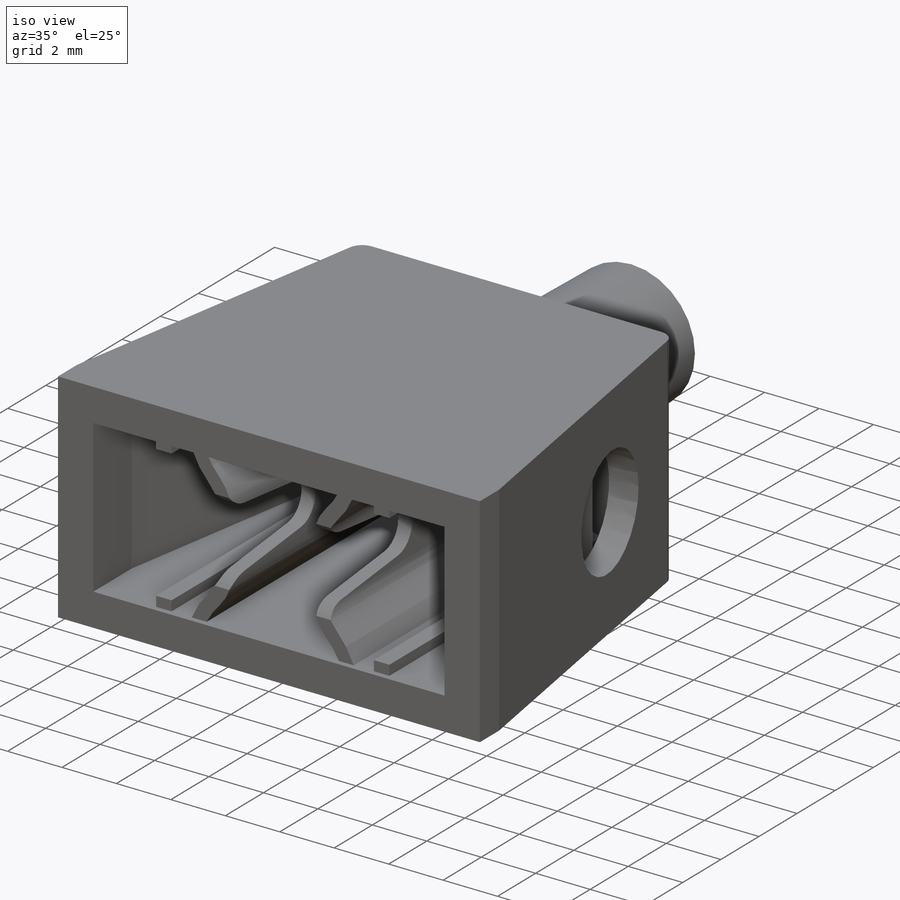
[diagram: iso view]
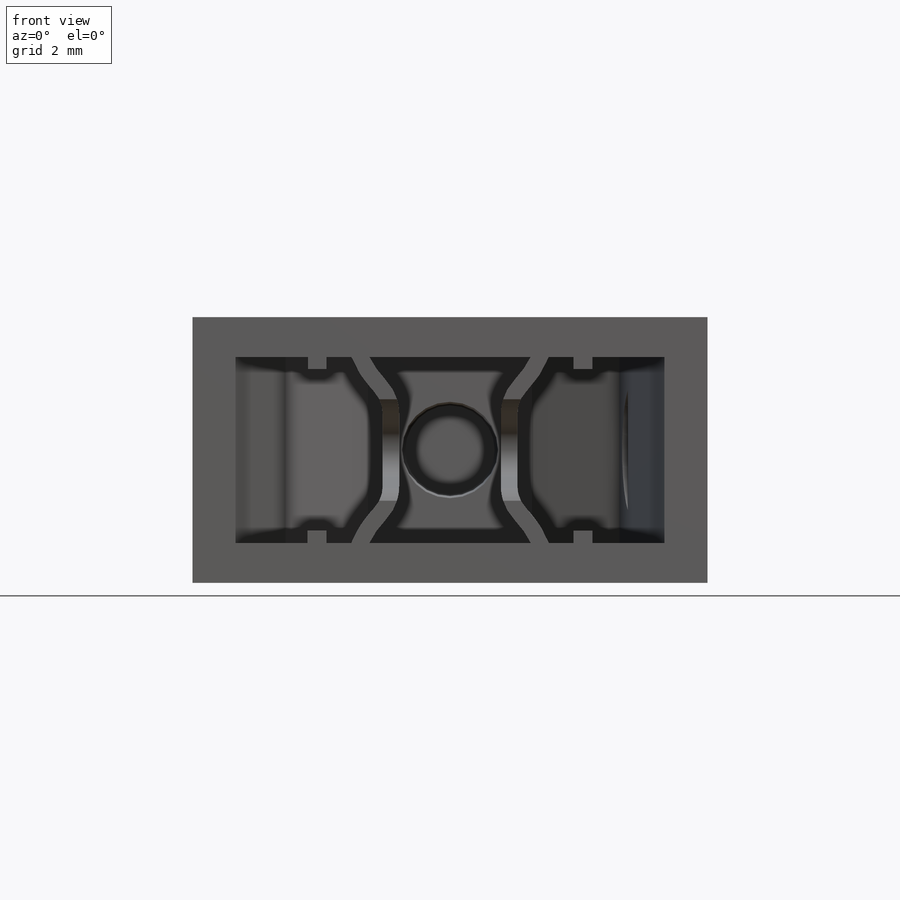
[diagram: front view]
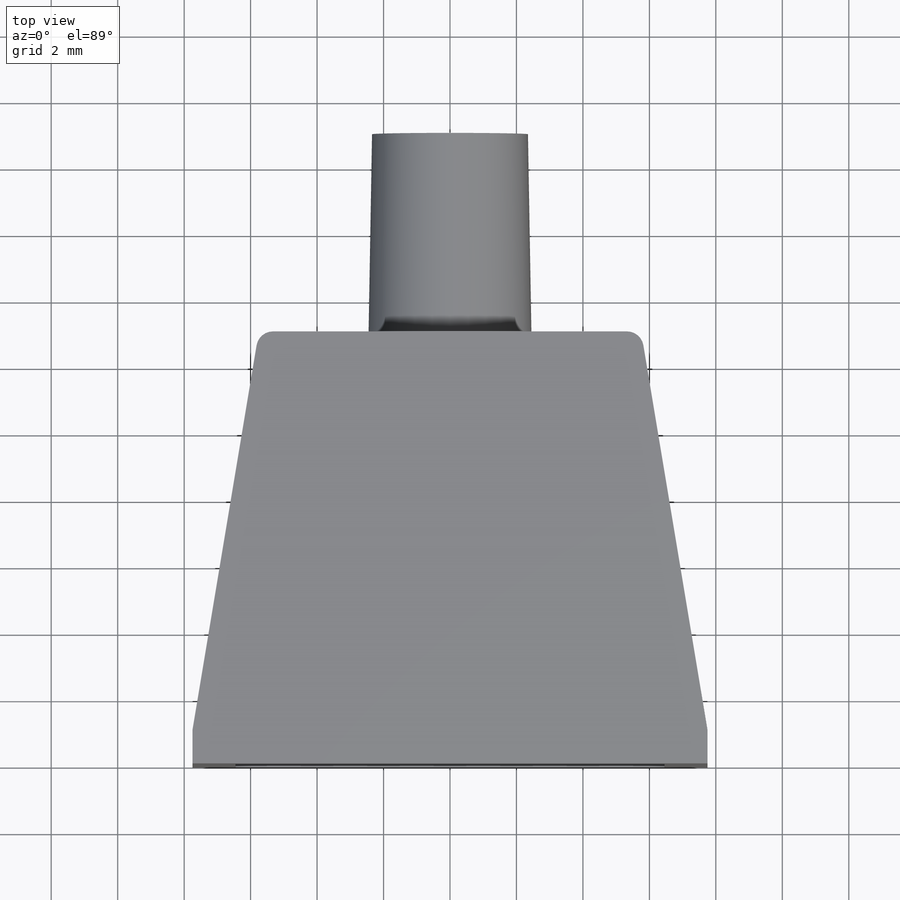
[diagram: top view]
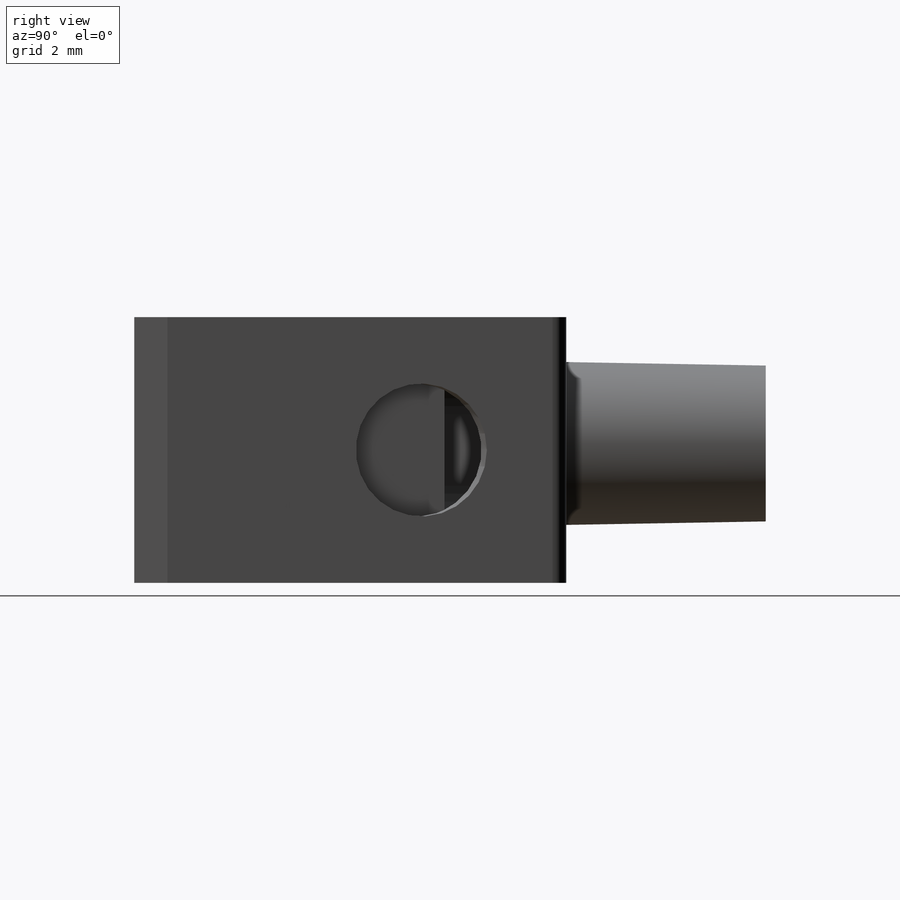
[diagram: right view]
SOLIDWORKS PART (.sldprt)
format: sldprt  version: not decoded by parser v0  size: 490,496 bytes
history: native  units: mm
features: sketch x8, cut_extrude x5, extrude x3, material x1, fillet x1, plane x1, mirror x1 (+11 scaffold rows collapsed)
feature tree (31):
  scaffold x11  (default folders/planes/origin — collapsed)
  material  "Material <not specified>"
  sketch  "Sketch3"  dims[D1=7.75mm D2=1.0mm D3=5.75mm D4=13.0mm D5=8.0mm]
  extrude  "Boss-Extrude1"  Depth=8mm
  fillet  "Fillet1"  Radius=0.5mm
  sketch  "Sketch5"  dims[D1=4.9mm]
  extrude  "Boss-Extrude2"  Depth=6mm
  sketch  "Sketch7"  dims[D1=4.0mm D2=4.0mm]
  sketch  "Sketch8"  dims[D1=4.0mm D2=4.0mm]
  plane  "Plane4"  Offset=4mm
  sketch  "Sketch9"  dims[c1.D1=1.0mm c1.D2=1.3mm c1.D3=~8.135367mm c2.D3=~179.082398deg c3.D3=~8.135367mm c4.D3=~0.917602deg c5.D3=~8.135367mm c6.D3=~179.082398deg c7.D3=~11.741962mm c8.D3=~179.082398deg c9.D3=~11.741962mm c10.D3=~179.082398deg c11.D3=~11.741962mm c12.D3=~80.537678deg c13.D3=4.0mm c14.D3=~0.917602deg c15.D3=~11.741962mm c16.D3=~179.082398deg c17.D3=~11.741962mm c18.D3=~80.537678deg c19.D3=1.0mm c19.D4=0.0mm c19.D5=2.0mm c19.D6=~11.741962mm c20.D6=180.0deg c20.D1=2.0mm c20.D7=12.9mm c20.D8=2.0mm c20.D9=1.3mm]
  cut_extrude  "Cut-Extrude4"  Depth=2.8mm
  sketch  "Sketch10"  dims[D1=2.9mm]
  cut_extrude  "Cut-Extrude5"  Depth=6mm
  sketch  "Sketch11"  dims[c1.D1=4.9mm c1.D2=1.0mm c1.D4=~2.708787mm c1.D5=~2.706854mm c2.D4=0.5mm c2.D5=0.5mm c2.D3=0.5mm]
  cut_extrude  "Cut-Extrude6"  Depth=1mm
  cut_extrude  "Cut-Extrude7"  Depth=1mm
  extrude  "Boss-Extrude4"  Depth=12.5mm
  mirror  "Mirror1"
  sketch  "Sketch12"  dims[D1=1.0mm]
  cut_extrude  "Cut-Extrude8"  Depth=2.5mm
decode coverage: 17 of 18 modeling features carry decoded parameters
note: ~ marks probable driven/reference dimensions
note: suppression state not decoded; provenance and decode notes live in map.json
